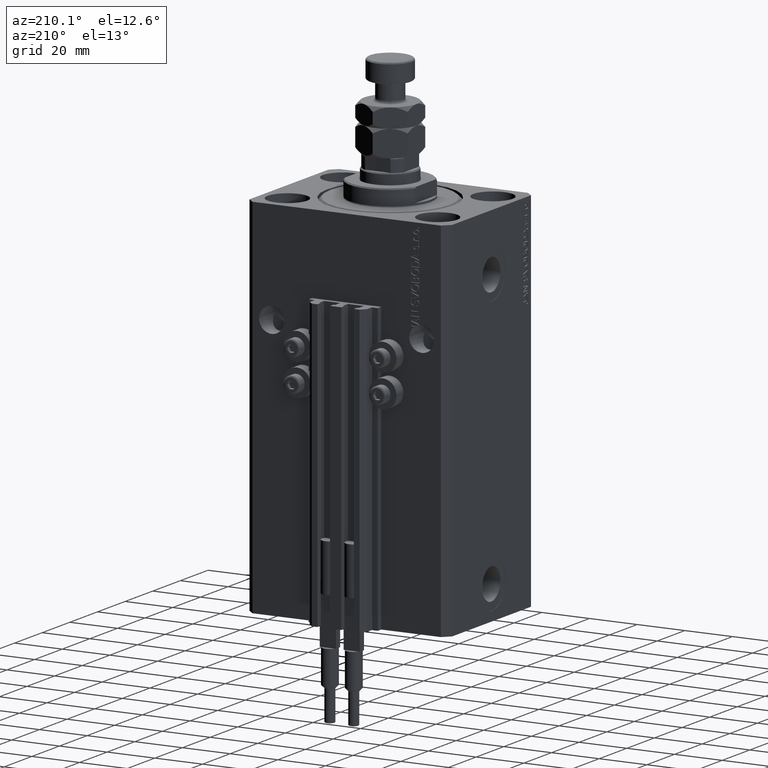
[diagram: clean part render]
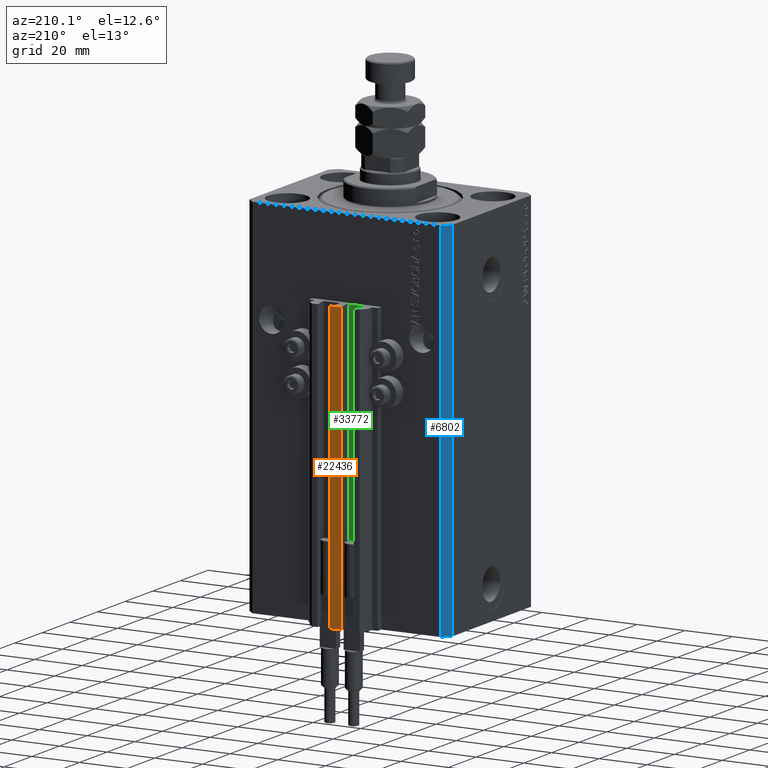
[diagram: same view with three faces highlighted in distinct colors, each labeled with its STEP entity id]
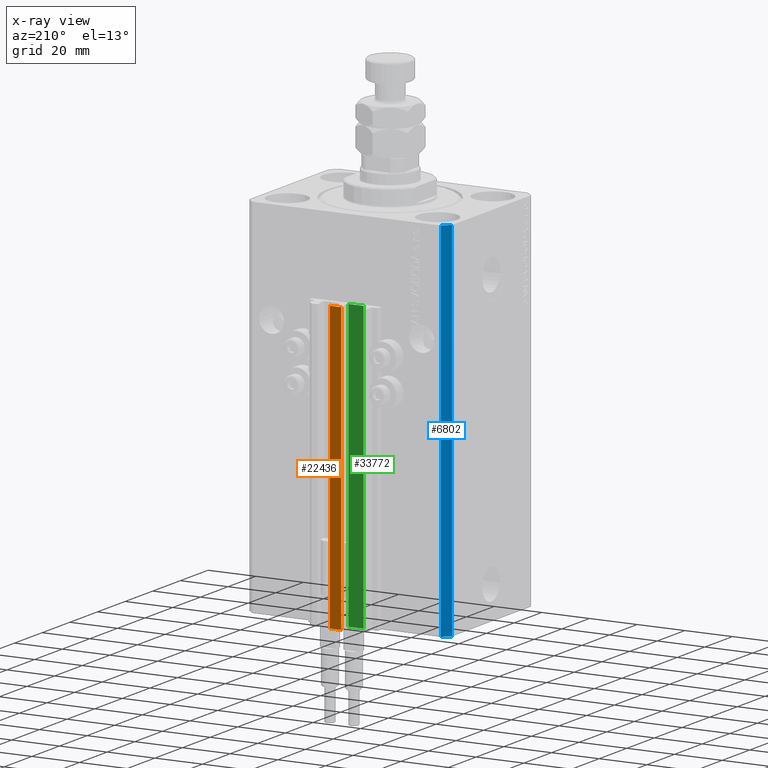
[diagram: x-ray of the same camera — body ghosted, the three highlighted faces saturated]
A machine part, auxiliary view with three faces highlighted in distinct colors.
The next image is the same camera in x-ray (body ghosted, the three faces saturated) — at least one of them is partly hidden behind the body in this view.
Their STEP definitions:

[orange] entity #22436 — the highlighted planar face has unit normal (0, -1, 0).
#416 = EDGE_LOOP ( 'NONE', ( #2487, #2035, #27034, #3658 ) ) ;
#2035 = ORIENTED_EDGE ( 'NONE', *, *, #21681, .F. ) ;
#2487 = ORIENTED_EDGE ( 'NONE', *, *, #2508, .T. ) ;
#2508 = EDGE_CURVE ( 'NONE', #44965, #18982, #47894, .T. ) ;
#2942 = LINE ( 'NONE', #18560, #38110 ) ;
#3658 = ORIENTED_EDGE ( 'NONE', *, *, #42478, .T. ) ;
#6783 = VERTEX_POINT ( 'NONE', #21582 ) ;
#8800 = VECTOR ( 'NONE', #36286, 1000.000000000000000 ) ;
#10938 = CARTESIAN_POINT ( 'NONE',  ( -2.350000000000003642, 39.50000000000000711, -153.0000000000000000 ) ) ;
#14782 = PLANE ( 'NONE',  #29713 ) ;
#18560 = CARTESIAN_POINT ( 'NONE',  ( -2.350000000000003642, 39.50000000000000711, -153.0000000000000000 ) ) ;
#18982 = VERTEX_POINT ( 'NONE', #38504 ) ;
#19884 = VECTOR ( 'NONE', #27425, 1000.000000000000000 ) ;
#20700 = VERTEX_POINT ( 'NONE', #25747 ) ;
#21582 = CARTESIAN_POINT ( 'NONE',  ( -2.350000000000003642, 39.50000000000000711, -153.0000000000000000 ) ) ;
#21681 = EDGE_CURVE ( 'NONE', #20700, #18982, #27171, .T. ) ;
#22436 = ADVANCED_FACE ( 'NONE', ( #26537 ), #14782, .F. ) ;
#24408 = CARTESIAN_POINT ( 'NONE',  ( -2.350000000000003642, 39.50000000000000711, -33.00000000000000000 ) ) ;
#25747 = CARTESIAN_POINT ( 'NONE',  ( 2.349999999999999645, 39.50000000000000711, -153.0000000000000000 ) ) ;
#26537 = FACE_OUTER_BOUND ( 'NONE', #416, .T. ) ;
#27034 = ORIENTED_EDGE ( 'NONE', *, *, #31942, .F. ) ;
#27171 = LINE ( 'NONE', #45853, #19884 ) ;
#27425 = DIRECTION ( 'NONE',  ( 0.000000000000000000, 0.000000000000000000, 1.000000000000000000 ) ) ;
#29713 = AXIS2_PLACEMENT_3D ( 'NONE', #10938, #34484, #30629 ) ;
#30629 = DIRECTION ( 'NONE',  ( 0.000000000000000000, -0.000000000000000000, -1.000000000000000000 ) ) ;
#31942 = EDGE_CURVE ( 'NONE', #6783, #20700, #2942, .T. ) ;
#32448 = LINE ( 'NONE', #47786, #8800 ) ;
#32556 = CARTESIAN_POINT ( 'NONE',  ( -2.350000000000003642, 39.50000000000000711, -33.00000000000000000 ) ) ;
#34484 = DIRECTION ( 'NONE',  ( 0.000000000000000000, -1.000000000000000000, 0.000000000000000000 ) ) ;
#35640 = DIRECTION ( 'NONE',  ( 1.000000000000000000, 0.000000000000000000, 0.000000000000000000 ) ) ;
#36286 = DIRECTION ( 'NONE',  ( 0.000000000000000000, 0.000000000000000000, 1.000000000000000000 ) ) ;
#38110 = VECTOR ( 'NONE', #45427, 1000.000000000000000 ) ;
#38504 = CARTESIAN_POINT ( 'NONE',  ( 2.349999999999999645, 39.50000000000000711, -33.00000000000000000 ) ) ;
#40712 = VECTOR ( 'NONE', #35640, 1000.000000000000000 ) ;
#42478 = EDGE_CURVE ( 'NONE', #6783, #44965, #32448, .T. ) ;
#44965 = VERTEX_POINT ( 'NONE', #24408 ) ;
#45427 = DIRECTION ( 'NONE',  ( 1.000000000000000000, 0.000000000000000000, 0.000000000000000000 ) ) ;
#45853 = CARTESIAN_POINT ( 'NONE',  ( 2.349999999999999645, 39.50000000000000711, -153.0000000000000000 ) ) ;
#47786 = CARTESIAN_POINT ( 'NONE',  ( -2.350000000000003642, 39.50000000000000711, -153.0000000000000000 ) ) ;
#47894 = LINE ( 'NONE', #32556, #40712 ) ;

[blue] entity #6802 — the highlighted planar face has unit normal (-0.7071, 0.7071, 0).
#1340 = EDGE_LOOP ( 'NONE', ( #24454, #14862, #2319, #39284 ) ) ;
#2201 = VECTOR ( 'NONE', #13413, 1000.000000000000000 ) ;
#2319 = ORIENTED_EDGE ( 'NONE', *, *, #4830, .T. ) ;
#3030 = VERTEX_POINT ( 'NONE', #40544 ) ;
#3647 = FACE_OUTER_BOUND ( 'NONE', #1340, .T. ) ;
#4830 = EDGE_CURVE ( 'NONE', #3030, #44068, #35003, .T. ) ;
#6802 = ADVANCED_FACE ( 'NONE', ( #3647 ), #11587, .T. ) ;
#10573 = VECTOR ( 'NONE', #50601, 1000.000000000000000 ) ;
#10951 = EDGE_CURVE ( 'NONE', #3030, #21825, #26140, .T. ) ;
#11464 = CARTESIAN_POINT ( 'NONE',  ( -39.50000000000000711, 31.50000000000000000, -153.0000000000000000 ) ) ;
#11587 = PLANE ( 'NONE',  #48193 ) ;
#13094 = CARTESIAN_POINT ( 'NONE',  ( -39.50000000000000711, 31.50000000000000000, 0.000000000000000000 ) ) ;
#13413 = DIRECTION ( 'NONE',  ( -0.7071067811865471286, -0.7071067811865479058, 0.000000000000000000 ) ) ;
#14862 = ORIENTED_EDGE ( 'NONE', *, *, #10951, .F. ) ;
#14882 = DIRECTION ( 'NONE',  ( 0.000000000000000000, 0.000000000000000000, 1.000000000000000000 ) ) ;
#15170 = DIRECTION ( 'NONE',  ( -0.7071067811865471286, -0.7071067811865479058, 0.000000000000000000 ) ) ;
#15390 = EDGE_CURVE ( 'NONE', #44068, #18587, #27866, .T. ) ;
#18587 = VERTEX_POINT ( 'NONE', #21246 ) ;
#21246 = CARTESIAN_POINT ( 'NONE',  ( -42.50000000000000000, 28.50000000000000000, 0.000000000000000000 ) ) ;
#21825 = VERTEX_POINT ( 'NONE', #13094 ) ;
#24169 = CARTESIAN_POINT ( 'NONE',  ( -39.50000000000000711, 31.50000000000000000, 0.000000000000000000 ) ) ;
#24454 = ORIENTED_EDGE ( 'NONE', *, *, #33937, .F. ) ;
#24915 = LINE ( 'NONE', #24169, #2201 ) ;
#25500 = VECTOR ( 'NONE', #35304, 1000.000000000000000 ) ;
#26140 = LINE ( 'NONE', #49170, #36156 ) ;
#26432 = DIRECTION ( 'NONE',  ( -0.7071067811865479058, 0.7071067811865471286, 0.000000000000000000 ) ) ;
#27866 = LINE ( 'NONE', #35555, #25500 ) ;
#28807 = CARTESIAN_POINT ( 'NONE',  ( -42.50000000000000000, 28.50000000000000000, -153.0000000000000000 ) ) ;
#33937 = EDGE_CURVE ( 'NONE', #21825, #18587, #24915, .T. ) ;
#35003 = LINE ( 'NONE', #11464, #10573 ) ;
#35304 = DIRECTION ( 'NONE',  ( 0.000000000000000000, 0.000000000000000000, 1.000000000000000000 ) ) ;
#35555 = CARTESIAN_POINT ( 'NONE',  ( -42.50000000000000000, 28.50000000000000000, -153.0000000000000000 ) ) ;
#36156 = VECTOR ( 'NONE', #14882, 1000.000000000000000 ) ;
#39284 = ORIENTED_EDGE ( 'NONE', *, *, #15390, .T. ) ;
#40544 = CARTESIAN_POINT ( 'NONE',  ( -39.50000000000000711, 31.50000000000000000, -153.0000000000000000 ) ) ;
#44068 = VERTEX_POINT ( 'NONE', #28807 ) ;
#45613 = CARTESIAN_POINT ( 'NONE',  ( -39.50000000000000711, 31.50000000000000000, -153.0000000000000000 ) ) ;
#48193 = AXIS2_PLACEMENT_3D ( 'NONE', #45613, #26432, #15170 ) ;
#49170 = CARTESIAN_POINT ( 'NONE',  ( -39.50000000000000711, 31.50000000000000000, -153.0000000000000000 ) ) ;
#50601 = DIRECTION ( 'NONE',  ( -0.7071067811865471286, -0.7071067811865479058, 0.000000000000000000 ) ) ;

[green] entity #33772 — the highlighted planar face has unit normal (0, 1, 0).
#387 = FACE_OUTER_BOUND ( 'NONE', #16536, .T. ) ;
#1577 = ORIENTED_EDGE ( 'NONE', *, *, #12644, .F. ) ;
#4860 = LINE ( 'NONE', #17380, #11372 ) ;
#5025 = EDGE_CURVE ( 'NONE', #9760, #15447, #7314, .T. ) ;
#5377 = DIRECTION ( 'NONE',  ( 0.000000000000000000, 0.000000000000000000, 1.000000000000000000 ) ) ;
#6263 = EDGE_CURVE ( 'NONE', #38886, #21639, #7105, .T. ) ;
#6854 = DIRECTION ( 'NONE',  ( -1.000000000000000000, 0.000000000000000000, 0.000000000000000000 ) ) ;
#7105 = LINE ( 'NONE', #11712, #22031 ) ;
#7314 = LINE ( 'NONE', #15239, #26882 ) ;
#7488 = CARTESIAN_POINT ( 'NONE',  ( -8.199999999999997513, 33.50000000000000000, -33.00000000000000000 ) ) ;
#9760 = VERTEX_POINT ( 'NONE', #37154 ) ;
#10063 = VECTOR ( 'NONE', #5377, 1000.000000000000000 ) ;
#11372 = VECTOR ( 'NONE', #20462, 1000.000000000000000 ) ;
#11401 = DIRECTION ( 'NONE',  ( -1.000000000000000000, 0.000000000000000000, 0.000000000000000000 ) ) ;
#11712 = CARTESIAN_POINT ( 'NONE',  ( -1.800000000000000933, 33.50000000000000000, -33.00000000000000000 ) ) ;
#12644 = EDGE_CURVE ( 'NONE', #9760, #38886, #24065, .T. ) ;
#15239 = CARTESIAN_POINT ( 'NONE',  ( -1.800000000000000933, 33.50000000000000000, -153.0000000000000000 ) ) ;
#15447 = VERTEX_POINT ( 'NONE', #39135 ) ;
#15494 = PLANE ( 'NONE',  #27561 ) ;
#16536 = EDGE_LOOP ( 'NONE', ( #17741, #1577, #41707, #22477 ) ) ;
#16659 = CARTESIAN_POINT ( 'NONE',  ( -1.800000000000000933, 33.50000000000000000, -153.0000000000000000 ) ) ;
#17380 = CARTESIAN_POINT ( 'NONE',  ( -8.199999999999997513, 33.50000000000000000, -153.0000000000000000 ) ) ;
#17741 = ORIENTED_EDGE ( 'NONE', *, *, #6263, .F. ) ;
#20462 = DIRECTION ( 'NONE',  ( 0.000000000000000000, 0.000000000000000000, 1.000000000000000000 ) ) ;
#21639 = VERTEX_POINT ( 'NONE', #7488 ) ;
#22031 = VECTOR ( 'NONE', #6854, 1000.000000000000000 ) ;
#22477 = ORIENTED_EDGE ( 'NONE', *, *, #45672, .T. ) ;
#24065 = LINE ( 'NONE', #16659, #10063 ) ;
#24776 = CARTESIAN_POINT ( 'NONE',  ( -1.800000000000000933, 33.50000000000000000, -33.00000000000000000 ) ) ;
#26882 = VECTOR ( 'NONE', #11401, 1000.000000000000000 ) ;
#27561 = AXIS2_PLACEMENT_3D ( 'NONE', #35194, #39027, #31088 ) ;
#31088 = DIRECTION ( 'NONE',  ( 0.000000000000000000, 0.000000000000000000, 1.000000000000000000 ) ) ;
#33772 = ADVANCED_FACE ( 'NONE', ( #387 ), #15494, .T. ) ;
#35194 = CARTESIAN_POINT ( 'NONE',  ( -1.800000000000000933, 33.50000000000000000, -153.0000000000000000 ) ) ;
#37154 = CARTESIAN_POINT ( 'NONE',  ( -1.800000000000000933, 33.50000000000000000, -153.0000000000000000 ) ) ;
#38886 = VERTEX_POINT ( 'NONE', #24776 ) ;
#39027 = DIRECTION ( 'NONE',  ( 0.000000000000000000, 1.000000000000000000, -0.000000000000000000 ) ) ;
#39135 = CARTESIAN_POINT ( 'NONE',  ( -8.199999999999997513, 33.50000000000000000, -153.0000000000000000 ) ) ;
#41707 = ORIENTED_EDGE ( 'NONE', *, *, #5025, .T. ) ;
#45672 = EDGE_CURVE ( 'NONE', #15447, #21639, #4860, .T. ) ;